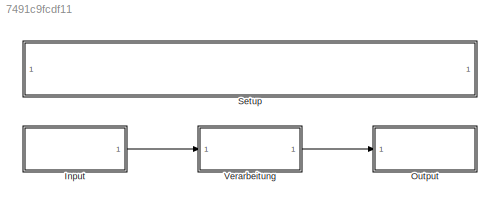
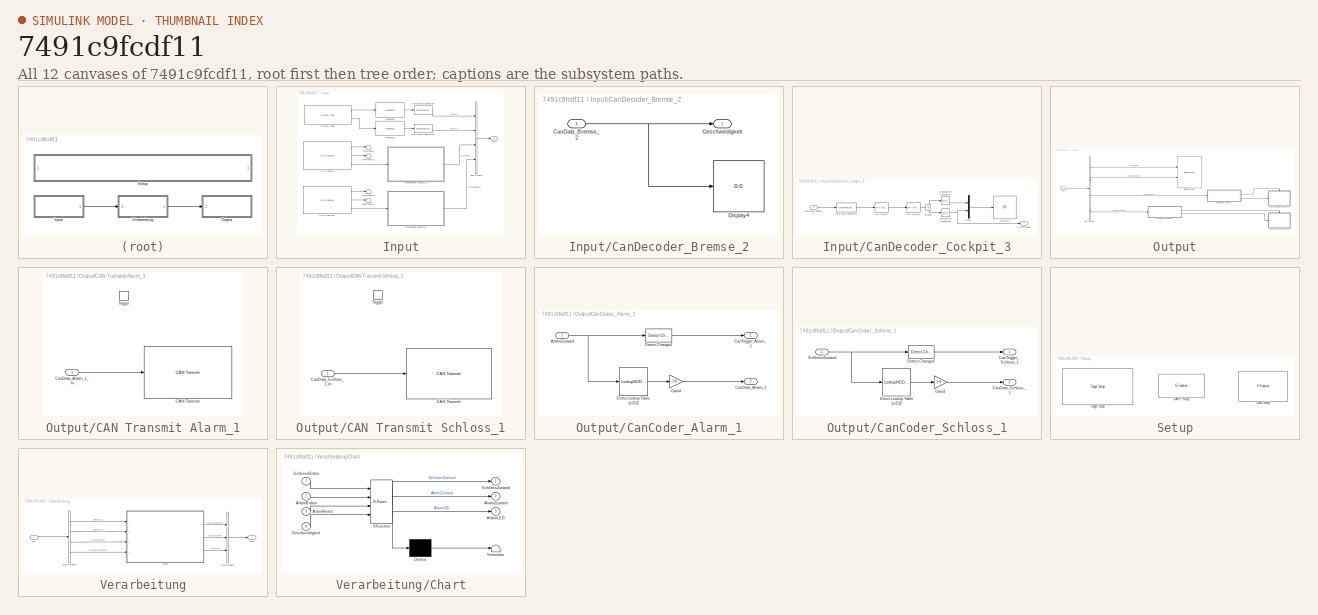
[diagram: thumbnail index - all 12 canvases of the model, root first then tree order]
MODEL slx_7491c9fcdf11
KIND model
CONFIG AbsTol = auto
CONFIG EnableMultiTasking = off
CONFIG FixedStep = auto
CONFIG MaxStep = auto
CONFIG MinStep = auto
CONFIG PreLoadFcn = waijung.modelPreload; % Required for working with Waijung Blockset. Do not remove.
CONFIG RelTol = 1e-3
CONFIG SampleTimeConstraint = Unconstrained
CONFIG Solver = FixedStepAuto
CONFIG SolverName = FixedStepAuto
CONFIG StartTime = 0.0
CONFIG StopTime = 10.0
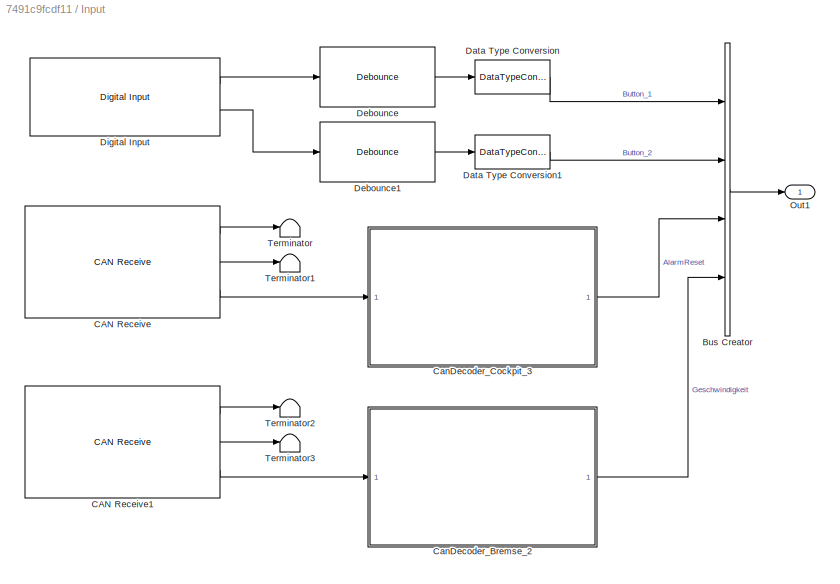
BLOCK [SubSystem] Input
  Ports = [0, 1]
  RequestExecContextInheritance = off
  Variant = off
BLOCK [BusCreator] Input/Bus Creator
  DisplayOption = bar
  InheritFromInputs = on
  Inputs = 4
  Ports = [4, 1]
BLOCK [Reference] Input/CAN Receive  REF=stm32f4_canbus_lib/CAN Receive
  Ports = [0, 3]
  SourceBlock = stm32f4_canbus_lib/CAN Receive
  SourceProductName = Waijung Blockset
  SourceType = stm32f4_can
BLOCK [Reference] Input/CAN Receive1  REF=stm32f4_canbus_lib/CAN Receive
  Ports = [0, 3]
  SourceBlock = stm32f4_canbus_lib/CAN Receive
  SourceProductName = Waijung Blockset
  SourceType = stm32f4_can
BLOCK [SubSystem] Input/CanDecoder_Bremse_2
  Ports = [1, 1]
  RequestExecContextInheritance = off
  Variant = off
BLOCK [Inport] Input/CanDecoder_Bremse_2/CanData_Bremse_2
  IconDisplay = Port number
BLOCK [Display] Input/CanDecoder_Bremse_2/Display4
  Decimation = 1
  Ports = [1]
BLOCK [Outport] Input/CanDecoder_Bremse_2/Geschwindigkeit
  IconDisplay = Port number
BLOCK [SubSystem] Input/CanDecoder_Cockpit_3
  Ports = [1, 1]
  RequestExecContextInheritance = off
  Variant = off
BLOCK [Outport] Input/CanDecoder_Cockpit_3/AlarmReset
  IconDisplay = Port number
BLOCK [Reference] Input/CanDecoder_Cockpit_3/Bit Shift4  REF=hdlsllib/Logic and Bit
Operations/Bit Shift
  Ports = [1, 1]
  SourceBlock = hdlsllib/Logic and Bit\nOperations/Bit Shift
  SourceProductBaseCode = HD
  SourceProductName = HDL Coder
  SourceType = Bit Shift
BLOCK [Reference] Input/CanDecoder_Cockpit_3/Bit Shift5  REF=hdlsllib/Logic and Bit
Operations/Bit Shift
  Ports = [1, 1]
  SourceBlock = hdlsllib/Logic and Bit\nOperations/Bit Shift
  SourceProductBaseCode = HD
  SourceProductName = HDL Coder
  SourceType = Bit Shift
BLOCK [Inport] Input/CanDecoder_Cockpit_3/CanData_Cockpit_3
  IconDisplay = Port number
BLOCK [Reference] Input/CanDecoder_Cockpit_3/Compare To Constant11  REF=simulink/Logic and Bit
Operations/Compare
To Constant
  Ports = [1, 1]
  SourceBlock = simulink/Logic and Bit\nOperations/Compare\nTo Constant
  SourceProductBaseCode = SL
  SourceProductName = Simulink
  SourceType = Compare To Constant
BLOCK [Reference] Input/CanDecoder_Cockpit_3/Compare To Constant12  REF=simulink/Logic and Bit
Operations/Compare
To Constant
  Ports = [1, 1]
  SourceBlock = simulink/Logic and Bit\nOperations/Compare\nTo Constant
  SourceProductBaseCode = SL
  SourceProductName = Simulink
  SourceType = Compare To Constant
BLOCK [DataTypeConversion] Input/CanDecoder_Cockpit_3/Data Type Conversion
  OutDataTypeStr = uint8
  RndMeth = Floor
  SaturateOnIntegerOverflow = off
BLOCK [Display] Input/CanDecoder_Cockpit_3/Display4
  Decimation = 1
  Ports = [1]
BLOCK [Ground] Input/CanDecoder_Cockpit_3/Ground
BLOCK [Mux] Input/CanDecoder_Cockpit_3/Mux3
  DisplayOption = bar
  Inputs = 2
  Ports = [2, 1]
BLOCK [DataTypeConversion] Input/Data Type Conversion
  RndMeth = Floor
  SaturateOnIntegerOverflow = off
BLOCK [DataTypeConversion] Input/Data Type Conversion1
  RndMeth = Floor
  SaturateOnIntegerOverflow = off
BLOCK [Reference] Input/Debounce  REF=stm32f4_io_lib/Debounce
  Ports = [1, 1]
  SourceBlock = stm32f4_io_lib/Debounce
  SourceProductName = Waijung Blockset
BLOCK [Reference] Input/Debounce1  REF=stm32f4_io_lib/Debounce
  Ports = [1, 1]
  SourceBlock = stm32f4_io_lib/Debounce
  SourceProductName = Waijung Blockset
BLOCK [Reference] Input/Digital Input  REF=stm32f4_io_lib/Digital Input
  Ports = [0, 2]
  SourceBlock = stm32f4_io_lib/Digital Input
  SourceProductName = Waijung Blockset
  SourceType = stm32f4_digital_input
BLOCK [Outport] Input/Out1
  IconDisplay = Port number
BLOCK [Terminator] Input/Terminator
BLOCK [Terminator] Input/Terminator1
BLOCK [Terminator] Input/Terminator2
BLOCK [Terminator] Input/Terminator3
BLOCK [SubSystem] Output
  Ports = [1]
  RequestExecContextInheritance = off
  Variant = off
BLOCK [BusSelector] Output/Bus Selector
  OutputAsBus = off
  OutputSignals = AlarmLED,SchliessZustand,AlarmZustand,SchliessZustand
  Ports = [1, 4]
BLOCK [SubSystem] Output/CAN Transmit Alarm_1
  Ports = [1, 0, 0, 1]
  RequestExecContextInheritance = off
  TreatAsAtomicUnit = on
  Variant = off
BLOCK [Reference] Output/CAN Transmit Alarm_1/CAN Transmit  REF=stm32f4_canbus_lib/CAN Transmit
  Ports = [1]
  SourceBlock = stm32f4_canbus_lib/CAN Transmit
  SourceProductName = Waijung Blockset
  SourceType = stm32f4_can
BLOCK [Inport] Output/CAN Transmit Alarm_1/CanData_Alarm_1_In
  IconDisplay = Port number
BLOCK [TriggerPort] Output/CAN Transmit Alarm_1/Trigger
  Ports = []
  StatesWhenEnabling = held
  VariantControl = Variant
BLOCK [SubSystem] Output/CAN Transmit Schloss_1
  Ports = [1, 0, 0, 1]
  RequestExecContextInheritance = off
  TreatAsAtomicUnit = on
  Variant = off
BLOCK [Reference] Output/CAN Transmit Schloss_1/CAN Transmit  REF=stm32f4_canbus_lib/CAN Transmit
  Ports = [1]
  SourceBlock = stm32f4_canbus_lib/CAN Transmit
  SourceProductName = Waijung Blockset
  SourceType = stm32f4_can
BLOCK [Inport] Output/CAN Transmit Schloss_1/CanData_Schloss_1_In
  IconDisplay = Port number
BLOCK [TriggerPort] Output/CAN Transmit Schloss_1/Trigger
  Ports = []
  StatesWhenEnabling = held
  VariantControl = Variant
BLOCK [SubSystem] Output/CanCoder_Alarm_1
  Ports = [1, 2]
  RequestExecContextInheritance = off
  Variant = off
BLOCK [Inport] Output/CanCoder_Alarm_1/AlarmZustand
  IconDisplay = Port number
BLOCK [Outport] Output/CanCoder_Alarm_1/CanData_Alarm_1
  IconDisplay = Port number
  Port = 2
BLOCK [Outport] Output/CanCoder_Alarm_1/CanTrigger_Alarm_1
  IconDisplay = Port number
BLOCK [Reference] Output/CanCoder_Alarm_1/Detect Change4  REF=simulink/Logic and Bit
Operations/Detect
Change
  Ports = [1, 1]
  SourceBlock = simulink/Logic and Bit\nOperations/Detect\nChange
  SourceProductBaseCode = SL
  SourceProductName = Simulink
  SourceType = Detect Change
BLOCK [LookupNDDirect] Output/CanCoder_Alarm_1/Direct Lookup Table (n-D)2
  NumberOfTableDimensions = 1
  Ports = [1, 1]
  Table = [0; 1]
BLOCK [Gain] Output/CanCoder_Alarm_1/Gain4
  Gain = 2^0
  OutDataTypeStr = uint8
  ParamDataTypeStr = Inherit: Inherit via internal rule
  SaturateOnIntegerOverflow = off
BLOCK [SubSystem] Output/CanCoder_Schloss_1
  Ports = [1, 2]
  RequestExecContextInheritance = off
  Variant = off
BLOCK [Outport] Output/CanCoder_Schloss_1/CanData_Schloss_1
  IconDisplay = Port number
  Port = 2
BLOCK [Outport] Output/CanCoder_Schloss_1/CanTrigger_Schloss_1
  IconDisplay = Port number
BLOCK [Reference] Output/CanCoder_Schloss_1/Detect Change4  REF=simulink/Logic and Bit
Operations/Detect
Change
  Ports = [1, 1]
  SourceBlock = simulink/Logic and Bit\nOperations/Detect\nChange
  SourceProductBaseCode = SL
  SourceProductName = Simulink
  SourceType = Detect Change
BLOCK [LookupNDDirect] Output/CanCoder_Schloss_1/Direct Lookup Table (n-D)2
  NumberOfTableDimensions = 1
  Ports = [1, 1]
  Table = [0; 1]
BLOCK [Gain] Output/CanCoder_Schloss_1/Gain4
  Gain = 2^0
  OutDataTypeStr = uint8
  ParamDataTypeStr = Inherit: Inherit via internal rule
  SaturateOnIntegerOverflow = off
BLOCK [Inport] Output/CanCoder_Schloss_1/SchliessZustand
  IconDisplay = Port number
BLOCK [Reference] Output/Digital Output  REF=stm32f4_io_lib/Digital Output
  Ports = [2]
  SourceBlock = stm32f4_io_lib/Digital Output
  SourceProductName = Waijung Blockset
  SourceType = stm32f4_digital_output
BLOCK [Inport] Output/In1
  IconDisplay = Port number
BLOCK [SubSystem] Setup
  Ports = []
  RequestExecContextInheritance = off
  Variant = off
BLOCK [S-Function] Setup/CAN Setup
  EnableBusSupport = off
  FunctionName = stm32f4_can
  Parameters = conf,canmodule,0,inputarray,outputarray,'','',confstr,sampletime,sampletimestr,blockid
  Ports = []
  SFcnIsStateOwnerBlock = off
  SFunctionDeploymentMode = off
BLOCK [Reference] Setup/Target Setup  REF=stm32f4_device_config_lib/Target Setup
  Ports = []
  Priority = 100
  SourceBlock = stm32f4_device_config_lib/Target Setup
  SourceProductName = Waijung Blockset
  SourceType = stm32f4_target_setup
BLOCK [S-Function] Setup/UART Setup
  EnableBusSupport = off
  FunctionName = stm32f4_usart
  Parameters = configuration,uartmodule,transfer,baudrate,inputtype,outputtype,confstr,binheaderarray,binterminatorarray,asciiheader,asciiterminator,bindatalength,packetmode,varname,sampletime,sampletimestr,blockid
  Ports = []
  Priority = 1
  SFcnIsStateOwnerBlock = off
  SFunctionDeploymentMode = off
BLOCK [SubSystem] Verarbeitung
  Ports = [1, 1]
  RequestExecContextInheritance = off
  Variant = off
BLOCK [BusCreator] Verarbeitung/Bus Creator
  DisplayOption = bar
  InheritFromInputs = on
  Inputs = 3
  Ports = [3, 1]
BLOCK [BusSelector] Verarbeitung/Bus Selector
  OutputAsBus = off
  OutputSignals = Button_1,Button_2,AlarmReset,Geschwindigkeit
  Ports = [1, 4]
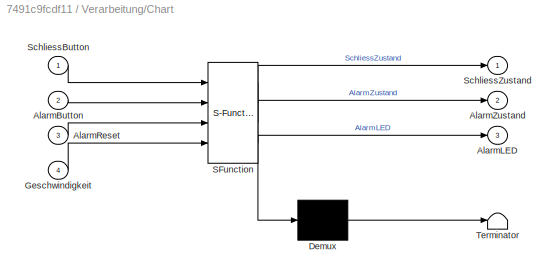
BLOCK [SubSystem] Verarbeitung/Chart
  ErrorFcn = Stateflow.Translate.translate
  PermitHierarchicalResolution = ExplicitOnly
  Ports = [4, 3]
  RequestExecContextInheritance = off
  SFBlockType = Chart
  TreatAsAtomicUnit = on
  Variant = off
BLOCK [Demux] Verarbeitung/Chart/ Demux 
  Outputs = 1
  Ports = [1, 1]
BLOCK [S-Function] Verarbeitung/Chart/ SFunction 
  EnableBusSupport = on
  FunctionName = sf_sfun
  PortCounts = [4 4]
  Ports = [4, 4]
  SFcnIsStateOwnerBlock = off
  SFunctionDeploymentMode = off
  Tag = Stateflow S-Function Schloss_Box_final 2
BLOCK [Terminator] Verarbeitung/Chart/ Terminator 
BLOCK [Inport] Verarbeitung/Chart/AlarmButton
  IconDisplay = Port number
  Port = 2
BLOCK [Outport] Verarbeitung/Chart/AlarmLED
  IconDisplay = Port number
  Port = 3
BLOCK [Inport] Verarbeitung/Chart/AlarmReset
  IconDisplay = Port number
  Port = 3
BLOCK [Outport] Verarbeitung/Chart/AlarmZustand
  IconDisplay = Port number
  Port = 2
BLOCK [Inport] Verarbeitung/Chart/Geschwindigkeit
  IconDisplay = Port number
  Port = 4
BLOCK [Inport] Verarbeitung/Chart/SchliessButton
  IconDisplay = Port number
BLOCK [Outport] Verarbeitung/Chart/SchliessZustand
  IconDisplay = Port number
BLOCK [Inport] Verarbeitung/In1
  IconDisplay = Port number
BLOCK [Outport] Verarbeitung/Out1
  IconDisplay = Port number
LINE Input/Bus Creator:1 -> Input/Out1:1
LINE Input/CAN Receive1:1 -> Input/Terminator2:1
LINE Input/CAN Receive1:2 -> Input/Terminator3:1
LINE Input/CAN Receive1:3 -> Input/CanDecoder_Bremse_2:1
LINE Input/CAN Receive:1 -> Input/Terminator:1
LINE Input/CAN Receive:2 -> Input/Terminator1:1
LINE Input/CAN Receive:3 -> Input/CanDecoder_Cockpit_3:1
NET Input/CanDecoder_Bremse_2/CanData_Bremse_2:1 -> Input/CanDecoder_Bremse_2/Display4:1, Input/CanDecoder_Bremse_2/Geschwindigkeit:1
LINE Input/CanDecoder_Bremse_2:1 -> Input/Bus Creator:4
LINE Input/CanDecoder_Cockpit_3/Bit Shift4:1 -> Input/CanDecoder_Cockpit_3/Bit Shift5:1
NET Input/CanDecoder_Cockpit_3/Bit Shift5:1 -> Input/CanDecoder_Cockpit_3/Compare To Constant11:1, Input/CanDecoder_Cockpit_3/Compare To Constant12:1
LINE Input/CanDecoder_Cockpit_3/CanData_Cockpit_3:1 -> Input/CanDecoder_Cockpit_3/Data Type Conversion:1
LINE Input/CanDecoder_Cockpit_3/Compare To Constant11:1 -> Input/CanDecoder_Cockpit_3/Mux3:1
NET Input/CanDecoder_Cockpit_3/Compare To Constant12:1 -> Input/CanDecoder_Cockpit_3/AlarmReset:1, Input/CanDecoder_Cockpit_3/Mux3:2
LINE Input/CanDecoder_Cockpit_3/Data Type Conversion:1 -> Input/CanDecoder_Cockpit_3/Bit Shift4:1
LINE Input/CanDecoder_Cockpit_3/Mux3:1 -> Input/CanDecoder_Cockpit_3/Display4:1
LINE Input/CanDecoder_Cockpit_3:1 -> Input/Bus Creator:3
LINE Input/Data Type Conversion1:1 -> Input/Bus Creator:2
LINE Input/Data Type Conversion:1 -> Input/Bus Creator:1
LINE Input/Debounce1:1 -> Input/Data Type Conversion1:1
LINE Input/Debounce:1 -> Input/Data Type Conversion:1
LINE Input/Digital Input:1 -> Input/Debounce:1
LINE Input/Digital Input:2 -> Input/Debounce1:1
LINE Input:1 -> Verarbeitung:1
LINE Output/Bus Selector:1 -> Output/Digital Output:1
LINE Output/Bus Selector:2 -> Output/Digital Output:2
LINE Output/Bus Selector:3 -> Output/CanCoder_Alarm_1:1
LINE Output/Bus Selector:4 -> Output/CanCoder_Schloss_1:1
LINE Output/CAN Transmit Alarm_1/CanData_Alarm_1_In:1 -> Output/CAN Transmit Alarm_1/CAN Transmit:1
LINE Output/CAN Transmit Schloss_1/CanData_Schloss_1_In:1 -> Output/CAN Transmit Schloss_1/CAN Transmit:1
NET Output/CanCoder_Alarm_1/AlarmZustand:1 -> Output/CanCoder_Alarm_1/Detect Change4:1, Output/CanCoder_Alarm_1/Direct Lookup Table (n-D)2:1
LINE Output/CanCoder_Alarm_1/Detect Change4:1 -> Output/CanCoder_Alarm_1/CanTrigger_Alarm_1:1
LINE Output/CanCoder_Alarm_1/Direct Lookup Table (n-D)2:1 -> Output/CanCoder_Alarm_1/Gain4:1
LINE Output/CanCoder_Alarm_1/Gain4:1 -> Output/CanCoder_Alarm_1/CanData_Alarm_1:1
LINE Output/CanCoder_Alarm_1:1 -> Output/CAN Transmit Alarm_1:trigger
LINE Output/CanCoder_Alarm_1:2 -> Output/CAN Transmit Alarm_1:1
LINE Output/CanCoder_Schloss_1/Detect Change4:1 -> Output/CanCoder_Schloss_1/CanTrigger_Schloss_1:1
LINE Output/CanCoder_Schloss_1/Direct Lookup Table (n-D)2:1 -> Output/CanCoder_Schloss_1/Gain4:1
LINE Output/CanCoder_Schloss_1/Gain4:1 -> Output/CanCoder_Schloss_1/CanData_Schloss_1:1
NET Output/CanCoder_Schloss_1/SchliessZustand:1 -> Output/CanCoder_Schloss_1/Detect Change4:1, Output/CanCoder_Schloss_1/Direct Lookup Table (n-D)2:1
LINE Output/CanCoder_Schloss_1:1 -> Output/CAN Transmit Schloss_1:trigger
LINE Output/CanCoder_Schloss_1:2 -> Output/CAN Transmit Schloss_1:1
LINE Output/In1:1 -> Output/Bus Selector:1
LINE Verarbeitung/Bus Creator:1 -> Verarbeitung/Out1:1
LINE Verarbeitung/Bus Selector:1 -> Verarbeitung/Chart:1
LINE Verarbeitung/Bus Selector:2 -> Verarbeitung/Chart:2
LINE Verarbeitung/Bus Selector:3 -> Verarbeitung/Chart:3
LINE Verarbeitung/Bus Selector:4 -> Verarbeitung/Chart:4
LINE Verarbeitung/Chart:1 -> Verarbeitung/Bus Creator:1
LINE Verarbeitung/Chart:2 -> Verarbeitung/Bus Creator:2
LINE Verarbeitung/Chart:3 -> Verarbeitung/Bus Creator:3
LINE Verarbeitung/In1:1 -> Verarbeitung/Bus Selector:1
LINE Verarbeitung:1 -> Output:1
note: NET lines group one-source signal fan-out (src -> all destinations, sorted); 1:1 wires keep LINE
CHART Verarbeitung/Chart states=9 transitions=11
  STATE_LABEL 'Schliessanlage'
  STATE_LABEL 'Geschlossen\nentry: SchliessZustand=1'
  STATE_LABEL 'OFFEN\nentry: SchliessZustand=0'
  STATE_LABEL '[SchliessButton==1]'
  STATE_LABEL '[SchliessButton==1]'
  STATE_LABEL 'Geschlossen\nentry: SchliessZustand=1'
  STATE_LABEL 'OFFEN\nentry: SchliessZustand=0'
  STATE_LABEL 'Alarmanlage'
  STATE_LABEL 'OFF\nentry: AlarmLED=false;\n'
  STATE_LABEL 'ON\n\n'
  STATE_LABEL 'TRIGGER_ON\nentry: AlarmZustand=1'
  STATE_LABEL 'TRIGGER_OFF\nentry:AlarmZustand=0'
  STATE_LABEL 'LED\nentry:\nAlarmLED=(~AlarmLED);\n'
  STATE_LABEL 'after(1,sec)'
  STATE_LABEL '[AlarmButton==1]'
  STATE_LABEL '[SchliessZustand==0&&AlarmReset==1]'
  STATE_LABEL '[SchliessZustand==1 && Geschwindigkeit==0]'
  STATE_LABEL '[SchliessZustand==0]'
  STATE_LABEL 'OFF\nentry: AlarmLED=false;\n'
  STATE_LABEL 'ON\n\n'
  STATE_LABEL 'TRIGGER_ON\nentry: AlarmZustand=1'
  STATE_LABEL 'TRIGGER_OFF\nentry:AlarmZustand=0'
  STATE_LABEL 'LED\nentry:\nAlarmLED=(~AlarmLED);\n'
  STATE_LABEL 'after(1,sec)'
  STATE_LABEL '[AlarmButton==1]'
  STATE_LABEL '[SchliessZustand==0&&AlarmReset==1]'
  STATE_LABEL 'TRIGGER_ON\nentry: AlarmZustand=1'
  STATE_LABEL 'TRIGGER_OFF\nentry:AlarmZustand=0'
  STATE_LABEL 'LED\nentry:\nAlarmLED=(~AlarmLED);\n'
  STATE_LABEL 'after(1,sec)'
  STATE_LABEL 'LED\nentry:\nAlarmLED=(~AlarmLED);\n'
